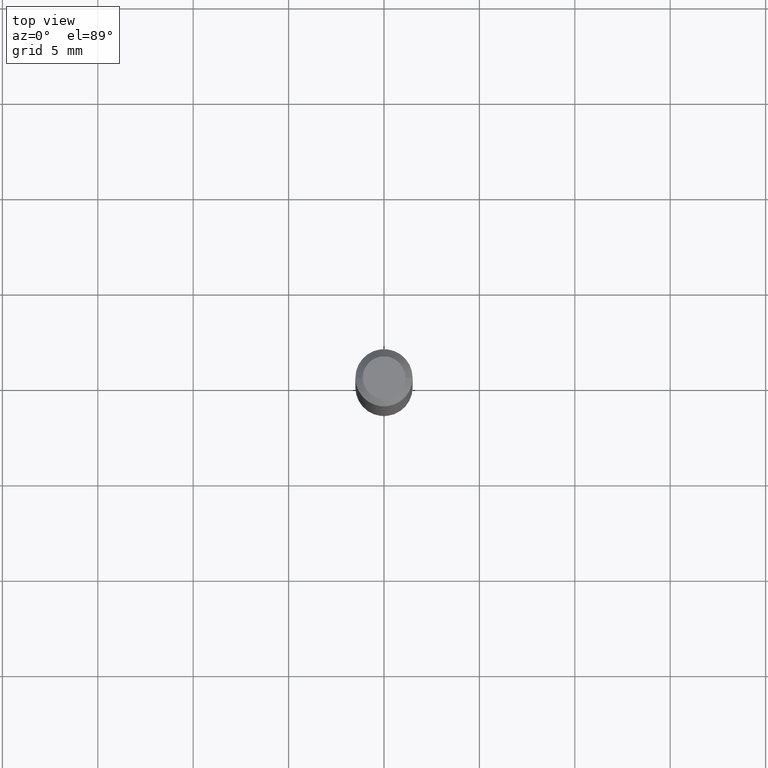
[diagram: clean part render]
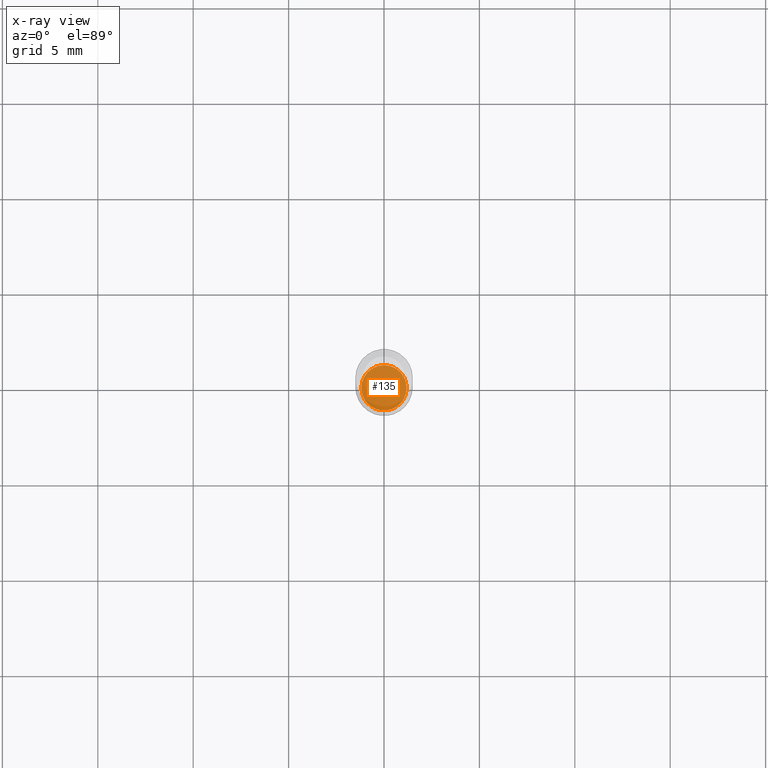
[diagram: x-ray — body ghosted, one internal face saturated and labeled with its STEP entity id]
A machine part, top view, then the same camera in x-ray: the body is ghosted and one INTERNAL B-rep face — a face not visible from any outside direction — is saturated and labeled: STEP entity #135.
In plain terms, the highlighted planar face has unit normal (-0, 0, 1).
Its self-contained STEP definition (entity closure, byte-faithful):
#14 = AXIS2_PLACEMENT_3D ( 'NONE', #208, #429, #100 ) ;
#30 = FACE_OUTER_BOUND ( 'NONE', #380, .T. ) ;
#50 = VERTEX_POINT ( 'NONE', #236 ) ;
#59 = DIRECTION ( 'NONE',  ( 1.000000000000000000, -6.982962677686266711E-15, 0.000000000000000000 ) ) ;
#61 = CIRCLE ( 'NONE', #153, 0.04674999999999999295 ) ;
#75 = EDGE_CURVE ( 'NONE', #50, #118, #61, .T. ) ;
#93 = CARTESIAN_POINT ( 'NONE',  ( 2.974912802724219302E-29, -4.247387048702686999E-15, -1.216500000000000137 ) ) ;
#100 = DIRECTION ( 'NONE',  ( 1.000000000000000000, -6.982962677686265922E-15, 4.876176775795935793E-29 ) ) ;
#118 = VERTEX_POINT ( 'NONE', #428 ) ;
#126 = ORIENTED_EDGE ( 'NONE', *, *, #75, .F. ) ;
#130 = DIRECTION ( 'NONE',  ( 1.000000000000000000, -6.982962677686266711E-15, 0.000000000000000000 ) ) ;
#135 = ADVANCED_FACE ( 'NONE', ( #30 ), #164, .F. ) ;
#146 = CIRCLE ( 'NONE', #186, 0.04674999999999999295 ) ;
#153 = AXIS2_PLACEMENT_3D ( 'NONE', #93, #309, #59 ) ;
#164 = PLANE ( 'NONE',  #14 ) ;
#186 = AXIS2_PLACEMENT_3D ( 'NONE', #244, #303, #130 ) ;
#202 = EDGE_CURVE ( 'NONE', #118, #50, #146, .T. ) ;
#208 = CARTESIAN_POINT ( 'NONE',  ( 2.974912802724219302E-29, -4.247387048702686999E-15, -1.216500000000000137 ) ) ;
#222 = ORIENTED_EDGE ( 'NONE', *, *, #202, .F. ) ;
#236 = CARTESIAN_POINT ( 'NONE',  ( 0.04674999999999999295, -4.573840553884519999E-15, -1.216500000000000137 ) ) ;
#244 = CARTESIAN_POINT ( 'NONE',  ( 2.974912802724219302E-29, -4.247387048702686999E-15, -1.216500000000000137 ) ) ;
#303 = DIRECTION ( 'NONE',  ( -2.445468806185136597E-29, 3.491481338843145583E-15, 1.000000000000000000 ) ) ;
#309 = DIRECTION ( 'NONE',  ( -2.445468806185136597E-29, 3.491481338843145583E-15, 1.000000000000000000 ) ) ;
#380 = EDGE_LOOP ( 'NONE', ( #126, #222 ) ) ;
#428 = CARTESIAN_POINT ( 'NONE',  ( -0.04674999999999999295, -3.912559092560728469E-15, -1.216500000000000137 ) ) ;
#429 = DIRECTION ( 'NONE',  ( -2.438088387897960049E-29, 3.491481338843145188E-15, 1.000000000000000000 ) ) ;